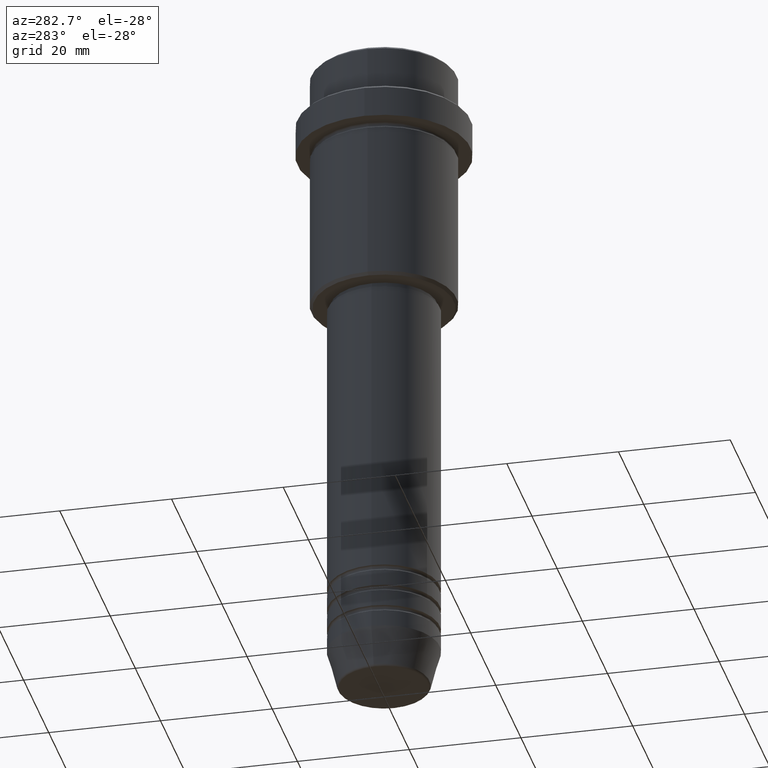
[diagram: clean part render]
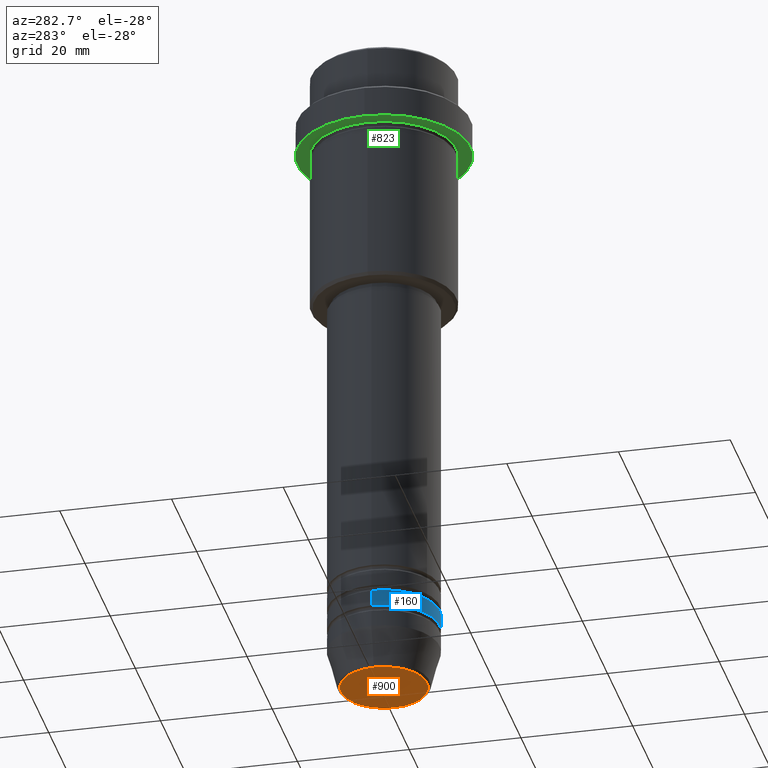
[diagram: same view with three faces highlighted in distinct colors, each labeled with its STEP entity id]
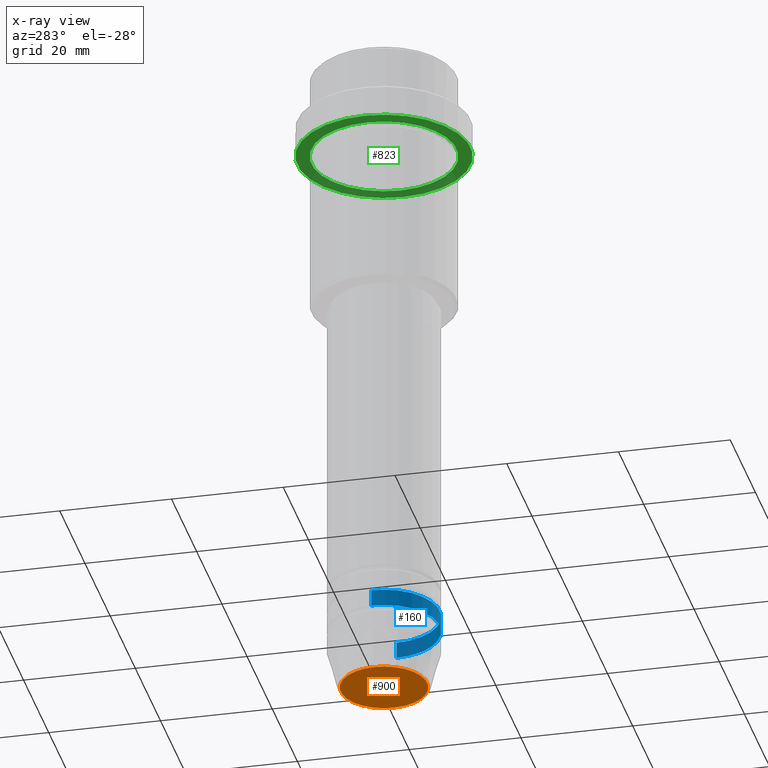
[diagram: x-ray of the same camera — body ghosted, the three highlighted faces saturated]
A machine part, auxiliary view with three faces highlighted in distinct colors.
The next image is the same camera in x-ray (body ghosted, the three faces saturated) — at least one of them is partly hidden behind the body in this view.
Their STEP definitions:

[orange] entity #900 — the highlighted planar face has unit normal (0, -0, 1).
#7 = EDGE_LOOP ( 'NONE', ( #61, #792 ) ) ;
#61 = ORIENTED_EDGE ( 'NONE', *, *, #807, .T. ) ;
#105 = DIRECTION ( 'NONE',  ( 0.000000000000000000, 0.000000000000000000, -1.000000000000000000 ) ) ;
#131 = DIRECTION ( 'NONE',  ( 0.000000000000000000, -0.000000000000000000, 1.000000000000000000 ) ) ;
#279 = CARTESIAN_POINT ( 'NONE',  ( 0.000000000000000000, 0.000000000000000000, -120.0000000000000000 ) ) ;
#321 = CIRCLE ( 'NONE', #1122, 7.740692158992654726 ) ;
#367 = CIRCLE ( 'NONE', #714, 7.740692158992654726 ) ;
#373 = FACE_OUTER_BOUND ( 'NONE', #7, .T. ) ;
#566 = DIRECTION ( 'NONE',  ( 1.000000000000000000, 0.000000000000000000, 0.000000000000000000 ) ) ;
#587 = DIRECTION ( 'NONE',  ( 1.000000000000000000, 0.000000000000000000, 0.000000000000000000 ) ) ;
#690 = PLANE ( 'NONE',  #733 ) ;
#714 = AXIS2_PLACEMENT_3D ( 'NONE', #279, #717, #1036 ) ;
#717 = DIRECTION ( 'NONE',  ( 0.000000000000000000, 0.000000000000000000, -1.000000000000000000 ) ) ;
#733 = AXIS2_PLACEMENT_3D ( 'NONE', #813, #131, #587 ) ;
#792 = ORIENTED_EDGE ( 'NONE', *, *, #1078, .T. ) ;
#807 = EDGE_CURVE ( 'NONE', #1381, #833, #367, .T. ) ;
#813 = CARTESIAN_POINT ( 'NONE',  ( 0.000000000000000000, 0.000000000000000000, -120.0000000000000000 ) ) ;
#833 = VERTEX_POINT ( 'NONE', #956 ) ;
#890 = CARTESIAN_POINT ( 'NONE',  ( 0.000000000000000000, 0.000000000000000000, -120.0000000000000000 ) ) ;
#894 = CARTESIAN_POINT ( 'NONE',  ( 7.740692158992654726, 0.000000000000000000, -120.0000000000000000 ) ) ;
#900 = ADVANCED_FACE ( 'NONE', ( #373 ), #690, .F. ) ;
#956 = CARTESIAN_POINT ( 'NONE',  ( -7.740692158992654726, 9.775343368540039135E-16, -120.0000000000000000 ) ) ;
#1036 = DIRECTION ( 'NONE',  ( 1.000000000000000000, 0.000000000000000000, 0.000000000000000000 ) ) ;
#1078 = EDGE_CURVE ( 'NONE', #833, #1381, #321, .T. ) ;
#1122 = AXIS2_PLACEMENT_3D ( 'NONE', #890, #105, #566 ) ;
#1381 = VERTEX_POINT ( 'NONE', #894 ) ;

[blue] entity #160 — the highlighted cylindrical surface (partial cylindrical patch) has radius 10 mm, axis along (-0, -0, 1).
#21 = FACE_OUTER_BOUND ( 'NONE', #39, .T. ) ;
#39 = EDGE_LOOP ( 'NONE', ( #488, #1047, #496, #1194 ) ) ;
#143 = DIRECTION ( 'NONE',  ( 1.000000000000000000, 0.000000000000000000, 0.000000000000000000 ) ) ;
#160 = ADVANCED_FACE ( 'NONE', ( #21 ), #1120, .T. ) ;
#180 = CIRCLE ( 'NONE', #893, 10.00000000000000000 ) ;
#209 = CARTESIAN_POINT ( 'NONE',  ( 10.00000000000000000, 0.000000000000000000, -108.9999999999998721 ) ) ;
#252 = VERTEX_POINT ( 'NONE', #1214 ) ;
#257 = DIRECTION ( 'NONE',  ( 1.000000000000000000, 0.000000000000000000, 0.000000000000000000 ) ) ;
#261 = VERTEX_POINT ( 'NONE', #352 ) ;
#306 = VERTEX_POINT ( 'NONE', #1172 ) ;
#352 = CARTESIAN_POINT ( 'NONE',  ( -10.00000000000000000, 1.224646799147353256E-15, -105.9999999999998721 ) ) ;
#488 = ORIENTED_EDGE ( 'NONE', *, *, #1293, .F. ) ;
#496 = ORIENTED_EDGE ( 'NONE', *, *, #1300, .T. ) ;
#530 = LINE ( 'NONE', #859, #1363 ) ;
#544 = CARTESIAN_POINT ( 'NONE',  ( -10.00000000000000000, 1.224646799147353256E-15, 0.000000000000000000 ) ) ;
#571 = CIRCLE ( 'NONE', #1404, 10.00000000000000000 ) ;
#632 = DIRECTION ( 'NONE',  ( -0.000000000000000000, -0.000000000000000000, 1.000000000000000000 ) ) ;
#676 = EDGE_CURVE ( 'NONE', #306, #1315, #180, .T. ) ;
#702 = CARTESIAN_POINT ( 'NONE',  ( 0.000000000000000000, 0.000000000000000000, 0.000000000000000000 ) ) ;
#762 = LINE ( 'NONE', #544, #912 ) ;
#796 = AXIS2_PLACEMENT_3D ( 'NONE', #702, #1243, #257 ) ;
#809 = DIRECTION ( 'NONE',  ( -0.000000000000000000, -0.000000000000000000, 1.000000000000000000 ) ) ;
#859 = CARTESIAN_POINT ( 'NONE',  ( 10.00000000000000000, 0.000000000000000000, 0.000000000000000000 ) ) ;
#864 = DIRECTION ( 'NONE',  ( -0.000000000000000000, -0.000000000000000000, 1.000000000000000000 ) ) ;
#893 = AXIS2_PLACEMENT_3D ( 'NONE', #928, #1250, #1024 ) ;
#912 = VECTOR ( 'NONE', #864, 1000.000000000000000 ) ;
#928 = CARTESIAN_POINT ( 'NONE',  ( 0.000000000000000000, 0.000000000000000000, -108.9999999999998721 ) ) ;
#1024 = DIRECTION ( 'NONE',  ( 1.000000000000000000, 0.000000000000000000, 0.000000000000000000 ) ) ;
#1047 = ORIENTED_EDGE ( 'NONE', *, *, #676, .T. ) ;
#1114 = CARTESIAN_POINT ( 'NONE',  ( 0.000000000000000000, 0.000000000000000000, -105.9999999999998721 ) ) ;
#1120 = CYLINDRICAL_SURFACE ( 'NONE', #796, 10.00000000000000000 ) ;
#1170 = EDGE_CURVE ( 'NONE', #261, #252, #571, .T. ) ;
#1172 = CARTESIAN_POINT ( 'NONE',  ( -10.00000000000000000, 1.224646799147353256E-15, -108.9999999999998721 ) ) ;
#1194 = ORIENTED_EDGE ( 'NONE', *, *, #1170, .F. ) ;
#1214 = CARTESIAN_POINT ( 'NONE',  ( 10.00000000000000000, 0.000000000000000000, -105.9999999999998721 ) ) ;
#1243 = DIRECTION ( 'NONE',  ( -0.000000000000000000, -0.000000000000000000, 1.000000000000000000 ) ) ;
#1250 = DIRECTION ( 'NONE',  ( -0.000000000000000000, -0.000000000000000000, 1.000000000000000000 ) ) ;
#1293 = EDGE_CURVE ( 'NONE', #306, #261, #762, .T. ) ;
#1300 = EDGE_CURVE ( 'NONE', #1315, #252, #530, .T. ) ;
#1315 = VERTEX_POINT ( 'NONE', #209 ) ;
#1363 = VECTOR ( 'NONE', #632, 1000.000000000000000 ) ;
#1404 = AXIS2_PLACEMENT_3D ( 'NONE', #1114, #809, #143 ) ;

[green] entity #823 — the highlighted planar face has unit normal (0, 0, -1).
#30 = CIRCLE ( 'NONE', #234, 15.50000000000000000 ) ;
#66 = DIRECTION ( 'NONE',  ( -1.000000000000000000, 0.000000000000000000, -0.000000000000000000 ) ) ;
#94 = DIRECTION ( 'NONE',  ( -1.000000000000000000, 0.000000000000000000, 0.000000000000000000 ) ) ;
#99 = CARTESIAN_POINT ( 'NONE',  ( 0.000000000000000000, 0.000000000000000000, -15.00000000000000000 ) ) ;
#108 = PLANE ( 'NONE',  #1374 ) ;
#132 = CARTESIAN_POINT ( 'NONE',  ( 15.50000000000000000, 0.000000000000000000, -15.00000000000000000 ) ) ;
#181 = CARTESIAN_POINT ( 'NONE',  ( 0.000000000000000000, 0.000000000000000000, -15.00000000000000000 ) ) ;
#234 = AXIS2_PLACEMENT_3D ( 'NONE', #947, #1044, #720 ) ;
#266 = ORIENTED_EDGE ( 'NONE', *, *, #1187, .F. ) ;
#310 = CIRCLE ( 'NONE', #481, 12.99999999999999645 ) ;
#349 = CARTESIAN_POINT ( 'NONE',  ( 12.99999999999999645, 1.592040838891558701E-15, -15.00000000000000000 ) ) ;
#447 = CIRCLE ( 'NONE', #781, 12.99999999999999645 ) ;
#472 = EDGE_LOOP ( 'NONE', ( #1071, #1308 ) ) ;
#481 = AXIS2_PLACEMENT_3D ( 'NONE', #99, #671, #780 ) ;
#524 = DIRECTION ( 'NONE',  ( 1.000000000000000000, 0.000000000000000000, 0.000000000000000000 ) ) ;
#602 = EDGE_LOOP ( 'NONE', ( #266, #1100 ) ) ;
#616 = EDGE_CURVE ( 'NONE', #735, #937, #30, .T. ) ;
#621 = FACE_OUTER_BOUND ( 'NONE', #602, .T. ) ;
#671 = DIRECTION ( 'NONE',  ( -0.000000000000000000, -0.000000000000000000, 1.000000000000000000 ) ) ;
#720 = DIRECTION ( 'NONE',  ( 1.000000000000000000, 0.000000000000000000, 0.000000000000000000 ) ) ;
#723 = DIRECTION ( 'NONE',  ( -0.000000000000000000, -0.000000000000000000, 1.000000000000000000 ) ) ;
#725 = CIRCLE ( 'NONE', #1093, 15.50000000000000000 ) ;
#735 = VERTEX_POINT ( 'NONE', #1017 ) ;
#756 = VERTEX_POINT ( 'NONE', #349 ) ;
#774 = DIRECTION ( 'NONE',  ( -0.000000000000000000, -0.000000000000000000, 1.000000000000000000 ) ) ;
#780 = DIRECTION ( 'NONE',  ( -1.000000000000000000, 0.000000000000000000, 0.000000000000000000 ) ) ;
#781 = AXIS2_PLACEMENT_3D ( 'NONE', #993, #774, #94 ) ;
#823 = ADVANCED_FACE ( 'NONE', ( #1184, #621 ), #108, .T. ) ;
#937 = VERTEX_POINT ( 'NONE', #132 ) ;
#947 = CARTESIAN_POINT ( 'NONE',  ( 0.000000000000000000, 0.000000000000000000, -15.00000000000000000 ) ) ;
#993 = CARTESIAN_POINT ( 'NONE',  ( 0.000000000000000000, 0.000000000000000000, -15.00000000000000000 ) ) ;
#1011 = EDGE_CURVE ( 'NONE', #1254, #756, #447, .T. ) ;
#1017 = CARTESIAN_POINT ( 'NONE',  ( -15.50000000000000000, 1.898202538678397557E-15, -15.00000000000000000 ) ) ;
#1044 = DIRECTION ( 'NONE',  ( -0.000000000000000000, -0.000000000000000000, 1.000000000000000000 ) ) ;
#1071 = ORIENTED_EDGE ( 'NONE', *, *, #1011, .T. ) ;
#1093 = AXIS2_PLACEMENT_3D ( 'NONE', #181, #723, #524 ) ;
#1100 = ORIENTED_EDGE ( 'NONE', *, *, #616, .F. ) ;
#1110 = CARTESIAN_POINT ( 'NONE',  ( 0.000000000000000000, 15.50000000000000000, -15.00000000000000000 ) ) ;
#1184 = FACE_BOUND ( 'NONE', #472, .T. ) ;
#1187 = EDGE_CURVE ( 'NONE', #937, #735, #725, .T. ) ;
#1254 = VERTEX_POINT ( 'NONE', #1291 ) ;
#1291 = CARTESIAN_POINT ( 'NONE',  ( -12.99999999999999645, 0.000000000000000000, -15.00000000000000000 ) ) ;
#1308 = ORIENTED_EDGE ( 'NONE', *, *, #1378, .T. ) ;
#1328 = DIRECTION ( 'NONE',  ( 0.000000000000000000, 0.000000000000000000, -1.000000000000000000 ) ) ;
#1374 = AXIS2_PLACEMENT_3D ( 'NONE', #1110, #1328, #66 ) ;
#1378 = EDGE_CURVE ( 'NONE', #756, #1254, #310, .T. ) ;